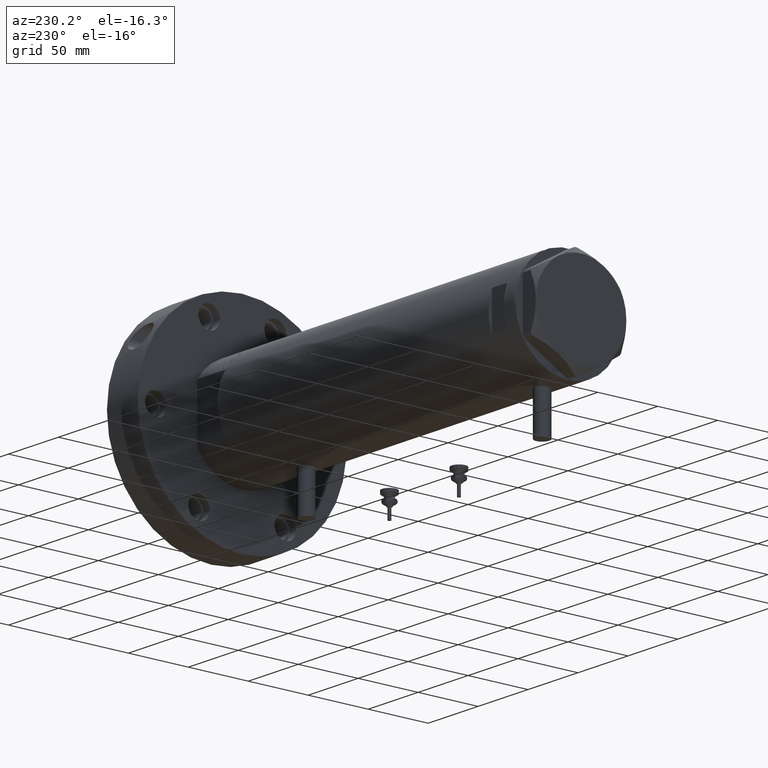
[diagram: clean part render]
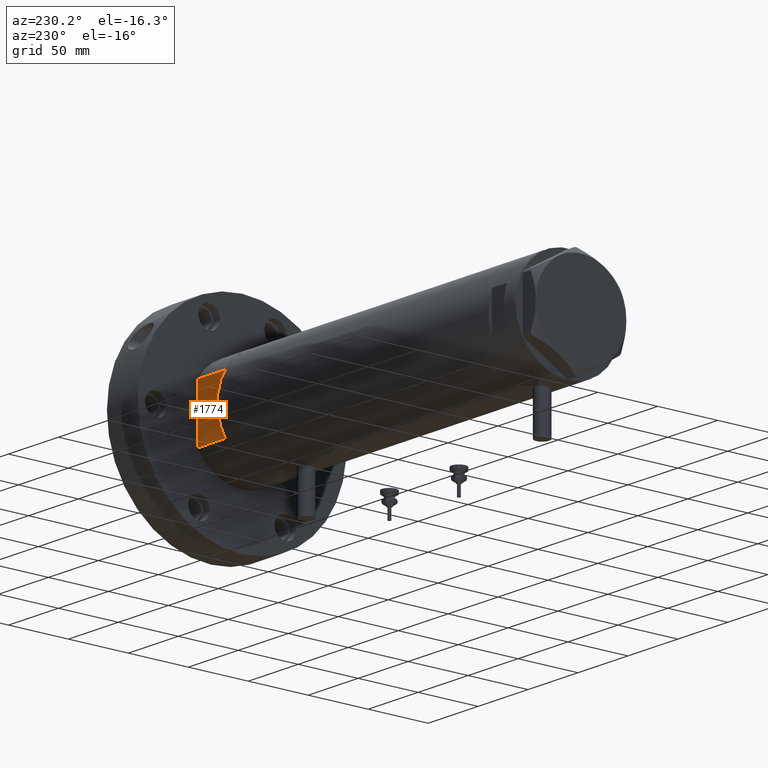
[diagram: same view with one face highlighted and labeled with its STEP entity id]
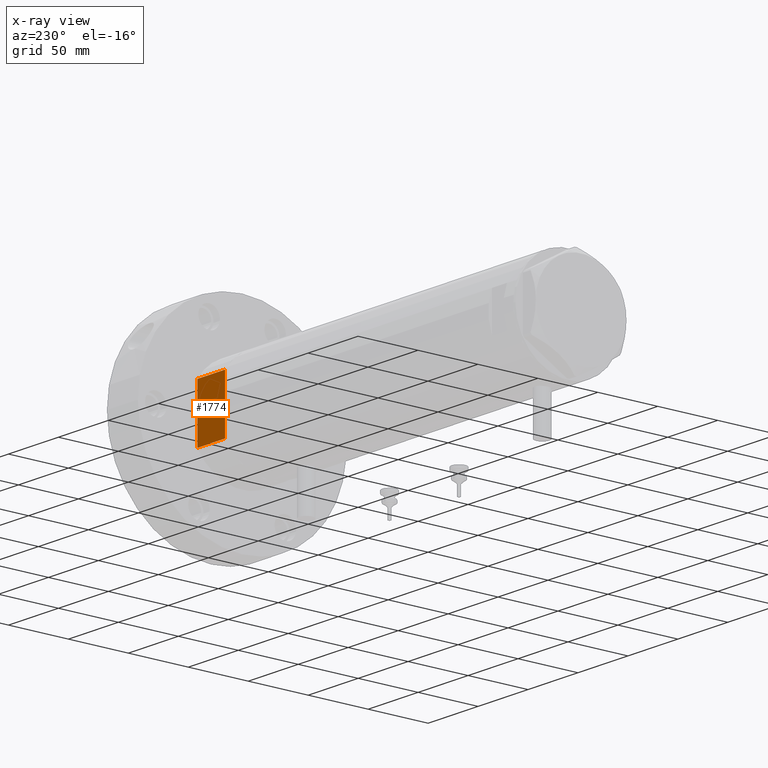
[diagram: x-ray of the same camera — body ghosted, the highlighted face saturated]
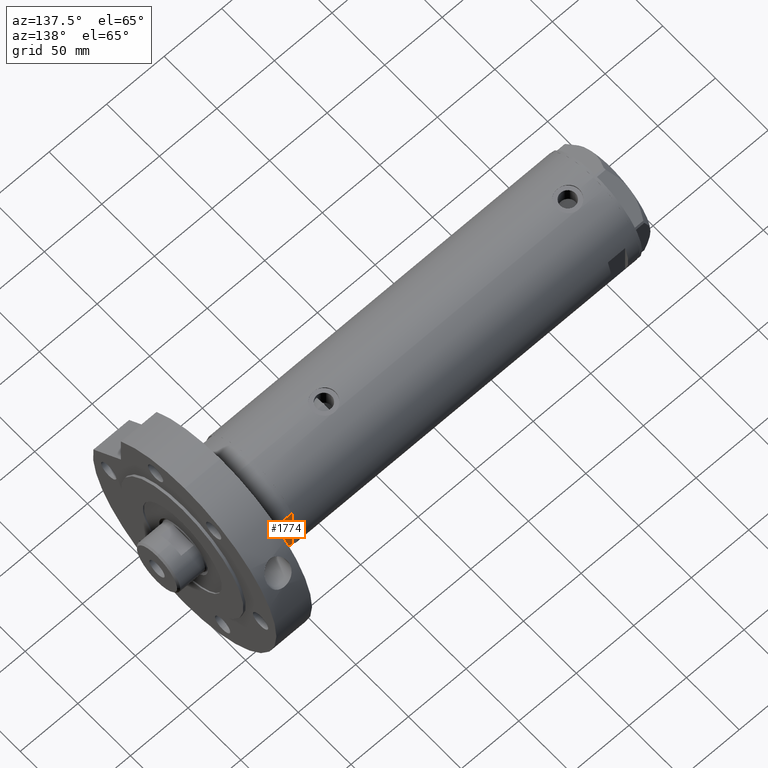
[diagram: same view with one face highlighted and labeled with its STEP entity id]
A machine part, auxiliary view. The second image highlights one B-rep face of the part: STEP entity #1774.
The next image is the same camera in x-ray: the body ghosted, the highlighted face saturated — about 0% of this face is hidden behind the body in this view.
A second angle (auxiliary view) of the same face is appended — the face is thin or edge-on in the first view.
In plain terms, the highlighted planar face has unit normal (0, -1, -0).
Its self-contained STEP definition (entity closure, byte-faithful):
#103 = ORIENTED_EDGE ( 'NONE', *, *, #4019, .F. ) ;
#336 = LINE ( 'NONE', #2678, #3992 ) ;
#418 = CARTESIAN_POINT ( 'NONE',  ( 23.01629857296780557, 37.50000000000000000, 0.000000000000000000 ) ) ;
#514 = CARTESIAN_POINT ( 'NONE',  ( -23.01629857296780557, 37.50000000000000000, 0.000000000000000000 ) ) ;
#720 = ORIENTED_EDGE ( 'NONE', *, *, #7041, .F. ) ;
#742 = LINE ( 'NONE', #5410, #6542 ) ;
#992 = VERTEX_POINT ( 'NONE', #4507 ) ;
#1033 = VECTOR ( 'NONE', #2986, 1000.000000000000000 ) ;
#1108 = CARTESIAN_POINT ( 'NONE',  ( -13.91941090707505957, 37.50000000000000000, 0.000000000000000000 ) ) ;
#1427 = ORIENTED_EDGE ( 'NONE', *, *, #3310, .T. ) ;
#1515 = CARTESIAN_POINT ( 'NONE',  ( -23.01629857296780557, 37.50000000000000000, 27.89999999999999858 ) ) ;
#1575 = DIRECTION ( 'NONE',  ( -0.000000000000000000, -0.000000000000000000, 1.000000000000000000 ) ) ;
#1630 = DIRECTION ( 'NONE',  ( 1.000000000000000000, 0.000000000000000000, 0.000000000000000000 ) ) ;
#1774 = ADVANCED_FACE ( 'NONE', ( #5939 ), #1852, .F. ) ;
#1852 = PLANE ( 'NONE',  #5927 ) ;
#1928 = CARTESIAN_POINT ( 'NONE',  ( -23.01629857296780557, 37.50000000000000000, 0.000000000000000000 ) ) ;
#2081 = CARTESIAN_POINT ( 'NONE',  ( -23.01629857296780557, 37.50000000000000000, 27.89999999999999858 ) ) ;
#2246 = ORIENTED_EDGE ( 'NONE', *, *, #4751, .F. ) ;
#2493 = LINE ( 'NONE', #1928, #1033 ) ;
#2581 = DIRECTION ( 'NONE',  ( -0.000000000000000000, -0.000000000000000000, 1.000000000000000000 ) ) ;
#2609 = EDGE_CURVE ( 'NONE', #7510, #992, #742, .T. ) ;
#2678 = CARTESIAN_POINT ( 'NONE',  ( -23.01629857296780557, 37.50000000000000000, 0.000000000000000000 ) ) ;
#2711 = VERTEX_POINT ( 'NONE', #1108 ) ;
#2758 = CARTESIAN_POINT ( 'NONE',  ( 23.01629857296780557, 37.50000000000000000, 0.000000000000000000 ) ) ;
#2855 = ORIENTED_EDGE ( 'NONE', *, *, #4149, .F. ) ;
#2986 = DIRECTION ( 'NONE',  ( 1.000000000000000000, 0.000000000000000000, 0.000000000000000000 ) ) ;
#3076 = DIRECTION ( 'NONE',  ( 0.000000000000000000, -1.000000000000000000, 0.000000000000000000 ) ) ;
#3197 = CARTESIAN_POINT ( 'NONE',  ( 23.01629857296780557, 37.50000000000000000, 27.89999999999999858 ) ) ;
#3310 = EDGE_CURVE ( 'NONE', #992, #4319, #5571, .T. ) ;
#3406 = EDGE_LOOP ( 'NONE', ( #1427, #4327, #2855, #103, #720, #2246, #5929 ) ) ;
#3992 = VECTOR ( 'NONE', #5014, 1000.000000000000000 ) ;
#4019 = EDGE_CURVE ( 'NONE', #6026, #5528, #2493, .T. ) ;
#4149 = EDGE_CURVE ( 'NONE', #5528, #7322, #7297, .T. ) ;
#4266 = DIRECTION ( 'NONE',  ( 0.000000000000000000, -0.000000000000000000, -1.000000000000000000 ) ) ;
#4319 = VERTEX_POINT ( 'NONE', #5852 ) ;
#4327 = ORIENTED_EDGE ( 'NONE', *, *, #5533, .T. ) ;
#4441 = DIRECTION ( 'NONE',  ( 1.000000000000000000, 0.000000000000000000, 0.000000000000000000 ) ) ;
#4507 = CARTESIAN_POINT ( 'NONE',  ( -23.01629857296780557, 37.50000000000000000, 27.89999999999999858 ) ) ;
#4538 = CARTESIAN_POINT ( 'NONE',  ( -23.01629857296780557, 37.50000000000000000, 0.000000000000000000 ) ) ;
#4751 = EDGE_CURVE ( 'NONE', #7510, #2711, #336, .T. ) ;
#5014 = DIRECTION ( 'NONE',  ( 1.000000000000000000, 0.000000000000000000, 0.000000000000000000 ) ) ;
#5309 = VECTOR ( 'NONE', #1630, 1000.000000000000000 ) ;
#5405 = CARTESIAN_POINT ( 'NONE',  ( -23.01629857296780557, 37.50000000000000000, 0.000000000000000000 ) ) ;
#5410 = CARTESIAN_POINT ( 'NONE',  ( -23.01629857296780557, 37.50000000000000000, 0.000000000000000000 ) ) ;
#5528 = VERTEX_POINT ( 'NONE', #418 ) ;
#5533 = EDGE_CURVE ( 'NONE', #4319, #7322, #7299, .T. ) ;
#5571 = LINE ( 'NONE', #1515, #5309 ) ;
#5592 = DIRECTION ( 'NONE',  ( 1.000000000000000000, 0.000000000000000000, 0.000000000000000000 ) ) ;
#5615 = CARTESIAN_POINT ( 'NONE',  ( 13.91941090707505957, 37.50000000000000000, 0.000000000000000000 ) ) ;
#5759 = LINE ( 'NONE', #514, #6215 ) ;
#5852 = CARTESIAN_POINT ( 'NONE',  ( 0.000000000000000000, 37.50000000000000000, 27.89999999999999858 ) ) ;
#5927 = AXIS2_PLACEMENT_3D ( 'NONE', #5405, #3076, #4266 ) ;
#5929 = ORIENTED_EDGE ( 'NONE', *, *, #2609, .T. ) ;
#5939 = FACE_OUTER_BOUND ( 'NONE', #3406, .T. ) ;
#6026 = VERTEX_POINT ( 'NONE', #5615 ) ;
#6215 = VECTOR ( 'NONE', #4441, 1000.000000000000000 ) ;
#6542 = VECTOR ( 'NONE', #2581, 1000.000000000000000 ) ;
#6902 = VECTOR ( 'NONE', #1575, 1000.000000000000000 ) ;
#7041 = EDGE_CURVE ( 'NONE', #2711, #6026, #5759, .T. ) ;
#7044 = VECTOR ( 'NONE', #5592, 1000.000000000000000 ) ;
#7297 = LINE ( 'NONE', #2758, #6902 ) ;
#7299 = LINE ( 'NONE', #2081, #7044 ) ;
#7322 = VERTEX_POINT ( 'NONE', #3197 ) ;
#7510 = VERTEX_POINT ( 'NONE', #4538 ) ;